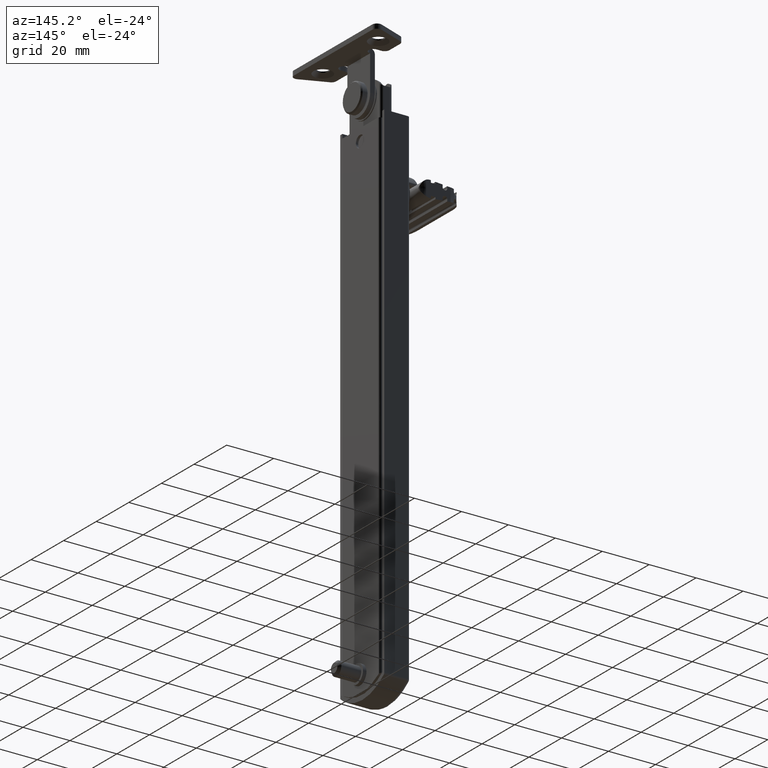
[diagram: clean part render]
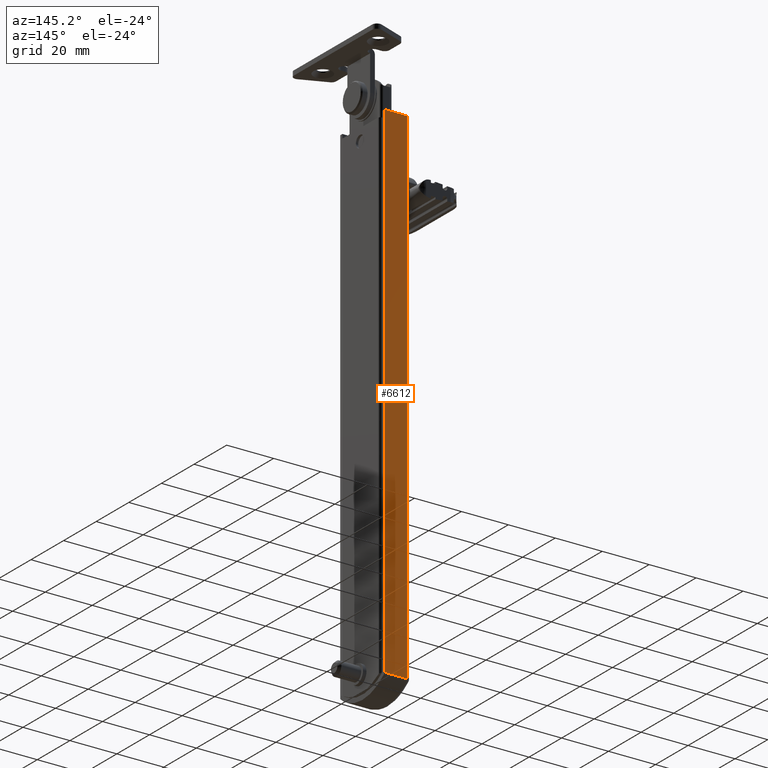
[diagram: same view with one face highlighted and labeled with its STEP entity id]
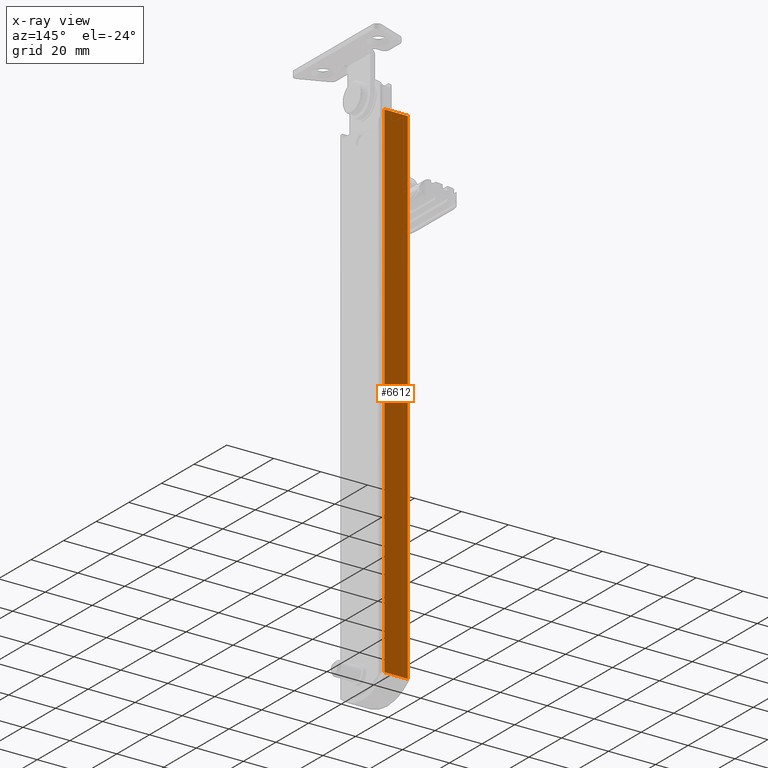
[diagram: x-ray of the same camera — body ghosted, the highlighted face saturated]
A machine part, auxiliary view. The second image highlights one B-rep face of the part: STEP entity #6612.
The next image is the same camera in x-ray: the body ghosted, the highlighted face saturated — about 0% of this face is hidden behind the body in this view.
In plain terms, the highlighted face is a freeform B-spline surface patch.
Its self-contained STEP definition (entity closure, byte-faithful):
#5726=CARTESIAN_POINT('',(1.0,13.500000000000000,-3.552740021254045));
#5727=VERTEX_POINT('',#5726);
#5764=CARTESIAN_POINT('',(1.0,13.500000000000000,211.999985000000010));
#5765=VERTEX_POINT('',#5764);
#5778=CARTESIAN_POINT('',(1.0,13.500000000000000,-3.552740021254045));
#5779=CARTESIAN_POINT('',(1.0,13.500000000000000,211.999985000000010));
#5780=QUASI_UNIFORM_CURVE('',1,(#5778,#5779),.UNSPECIFIED.,.F.,.U.);
#5781=EDGE_CURVE('',#5727,#5765,#5780,.T.);
#5808=CARTESIAN_POINT('',(11.0,13.500000000000000,-3.552740021254045));
#5809=VERTEX_POINT('',#5808);
#5824=CARTESIAN_POINT('',(11.0,13.500000000000000,-3.552740021254045));
#5825=CARTESIAN_POINT('',(1.0,13.500000000000000,-3.552740021254045));
#5826=QUASI_UNIFORM_CURVE('',1,(#5824,#5825),.UNSPECIFIED.,.F.,.U.);
#5827=EDGE_CURVE('',#5809,#5727,#5826,.T.);
#6537=CARTESIAN_POINT('',(11.000000000000121,13.500000000000000,211.999985000000010));
#6538=VERTEX_POINT('',#6537);
#6539=CARTESIAN_POINT('',(11.000000000000121,13.500000000000000,211.999985000000010));
#6540=CARTESIAN_POINT('',(11.0,13.500000000000000,-3.552740021254045));
#6541=QUASI_UNIFORM_CURVE('',1,(#6539,#6540),.UNSPECIFIED.,.F.,.U.);
#6542=EDGE_CURVE('',#6538,#5809,#6541,.T.);
#6597=CARTESIAN_POINT('',(0.500500019381935,13.500000000000000,-14.319598218282660));
#6598=CARTESIAN_POINT('',(0.500500019381935,13.500000000000000,222.766848978603290));
#6599=CARTESIAN_POINT('',(11.499500248839089,13.500000000000000,-14.319598218282660));
#6600=CARTESIAN_POINT('',(11.499500248839089,13.500000000000000,222.766848978603290));
#6601=B_SPLINE_SURFACE_WITH_KNOTS('',1,1,((#6597,#6599),(#6598,#6600)),.UNSPECIFIED.,.F.,.F.,.U.,(2,2),(2,2),(0.0,237.086447196886010),(0.0,10.999000229457151),.UNSPECIFIED.);
#6602=ORIENTED_EDGE('',*,*,#6542,.T.);
#6603=ORIENTED_EDGE('',*,*,#5827,.T.);
#6604=ORIENTED_EDGE('',*,*,#5781,.T.);
#6605=CARTESIAN_POINT('',(11.000000000000121,13.500000000000000,211.999985000000010));
#6606=CARTESIAN_POINT('',(1.0,13.500000000000000,211.999985000000010));
#6607=QUASI_UNIFORM_CURVE('',1,(#6605,#6606),.UNSPECIFIED.,.F.,.U.);
#6608=EDGE_CURVE('',#6538,#5765,#6607,.T.);
#6609=ORIENTED_EDGE('',*,*,#6608,.F.);
#6610=EDGE_LOOP('',(#6602,#6603,#6604,#6609));
#6611=FACE_OUTER_BOUND('',#6610,.T.);
#6612=ADVANCED_FACE('',(#6611),#6601,.T.);